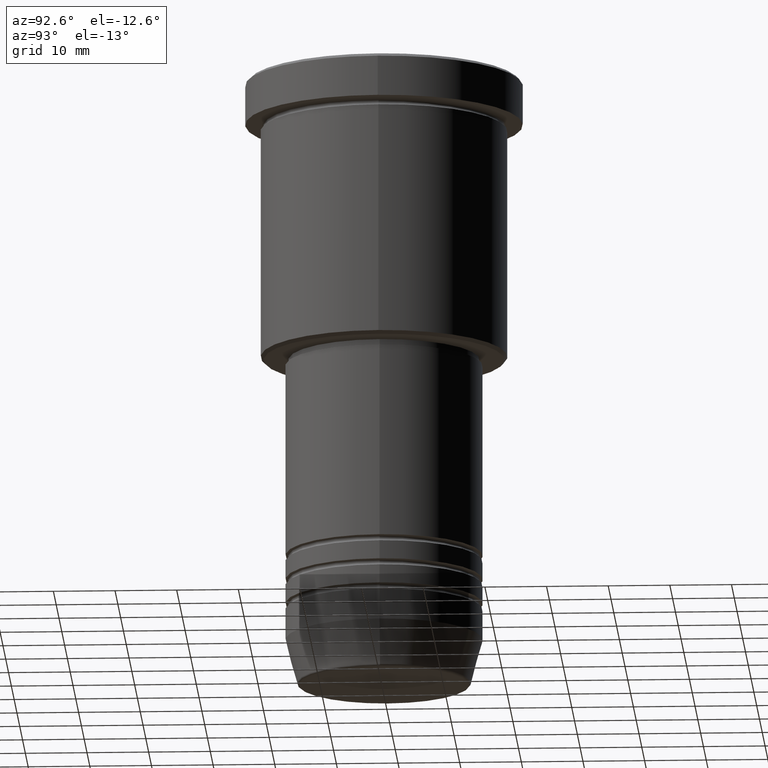
[diagram: clean part render]
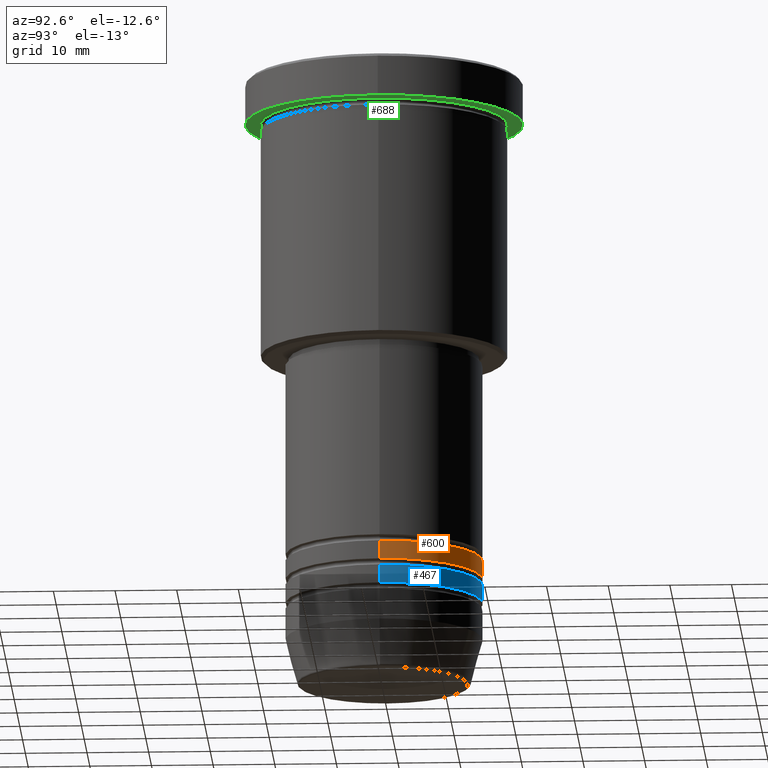
[diagram: same view with three faces highlighted in distinct colors, each labeled with its STEP entity id]
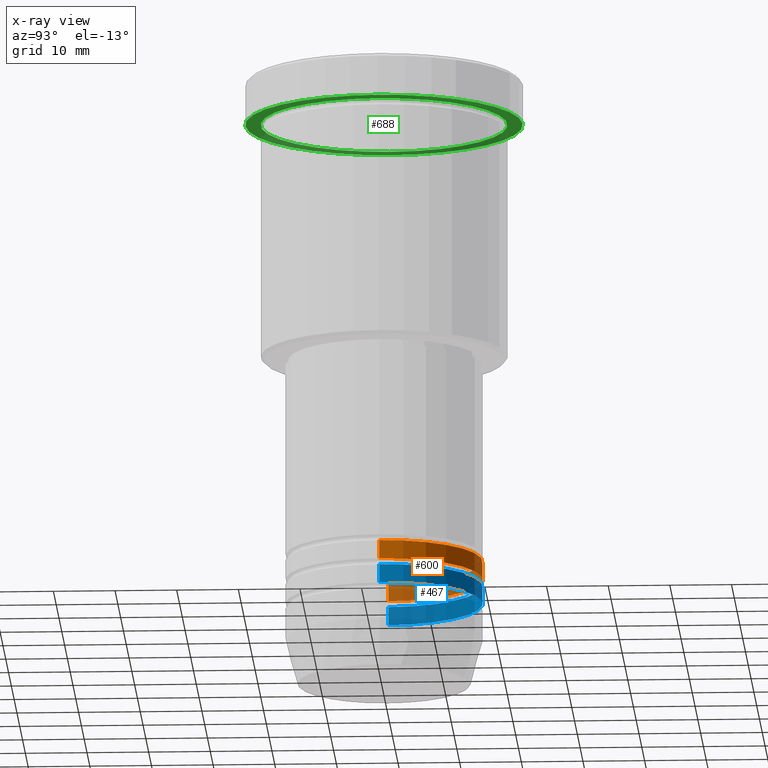
[diagram: x-ray of the same camera — body ghosted, the three highlighted faces saturated]
A machine part, auxiliary view with three faces highlighted in distinct colors.
The next image is the same camera in x-ray (body ghosted, the three faces saturated) — at least one of them is partly hidden behind the body in this view.
Their STEP definitions:

[orange] entity #600 — the highlighted cylindrical surface (partial cylindrical patch) has radius 16 mm, axis along (-0, -0, 1).
#17 = AXIS2_PLACEMENT_3D ( 'NONE', #780, #843, #623 ) ;
#59 = CARTESIAN_POINT ( 'NONE',  ( -16.00000000000000355, 1.959434878635765526E-15, -82.49999999999998579 ) ) ;
#79 = EDGE_CURVE ( 'NONE', #435, #656, #691, .T. ) ;
#93 = AXIS2_PLACEMENT_3D ( 'NONE', #449, #500, #190 ) ;
#122 = CARTESIAN_POINT ( 'NONE',  ( 16.00000000000000000, 0.000000000000000000, 0.000000000000000000 ) ) ;
#160 = EDGE_CURVE ( 'NONE', #1114, #435, #494, .T. ) ;
#167 = CARTESIAN_POINT ( 'NONE',  ( 0.000000000000000000, 0.000000000000000000, -82.49999999999998579 ) ) ;
#190 = DIRECTION ( 'NONE',  ( 1.000000000000000000, 0.000000000000000000, 0.000000000000000000 ) ) ;
#238 = DIRECTION ( 'NONE',  ( -0.000000000000000000, -0.000000000000000000, 1.000000000000000000 ) ) ;
#265 = ORIENTED_EDGE ( 'NONE', *, *, #160, .T. ) ;
#312 = AXIS2_PLACEMENT_3D ( 'NONE', #167, #529, #882 ) ;
#402 = FACE_OUTER_BOUND ( 'NONE', #716, .T. ) ;
#435 = VERTEX_POINT ( 'NONE', #59 ) ;
#441 = CARTESIAN_POINT ( 'NONE',  ( -16.00000000000000000, 1.959434878635765131E-15, 0.000000000000000000 ) ) ;
#449 = CARTESIAN_POINT ( 'NONE',  ( 0.000000000000000000, 0.000000000000000000, 0.000000000000000000 ) ) ;
#494 = CIRCLE ( 'NONE', #312, 16.00000000000000355 ) ;
#500 = DIRECTION ( 'NONE',  ( -0.000000000000000000, -0.000000000000000000, 1.000000000000000000 ) ) ;
#529 = DIRECTION ( 'NONE',  ( -0.000000000000000000, -0.000000000000000000, 1.000000000000000000 ) ) ;
#538 = CIRCLE ( 'NONE', #17, 16.00000000000000000 ) ;
#576 = DIRECTION ( 'NONE',  ( -0.000000000000000000, -0.000000000000000000, 1.000000000000000000 ) ) ;
#600 = ADVANCED_FACE ( 'NONE', ( #402 ), #774, .T. ) ;
#623 = DIRECTION ( 'NONE',  ( 1.000000000000000000, 0.000000000000000000, 0.000000000000000000 ) ) ;
#636 = VERTEX_POINT ( 'NONE', #1113 ) ;
#649 = CARTESIAN_POINT ( 'NONE',  ( -16.00000000000000000, 1.959434878635765131E-15, -79.49999999999998579 ) ) ;
#656 = VERTEX_POINT ( 'NONE', #649 ) ;
#675 = EDGE_CURVE ( 'NONE', #1114, #636, #1182, .T. ) ;
#689 = ORIENTED_EDGE ( 'NONE', *, *, #874, .F. ) ;
#691 = LINE ( 'NONE', #441, #1084 ) ;
#716 = EDGE_LOOP ( 'NONE', ( #265, #950, #689, #956 ) ) ;
#723 = VECTOR ( 'NONE', #576, 1000.000000000000000 ) ;
#733 = CARTESIAN_POINT ( 'NONE',  ( 16.00000000000000355, 0.000000000000000000, -82.49999999999998579 ) ) ;
#774 = CYLINDRICAL_SURFACE ( 'NONE', #93, 16.00000000000000000 ) ;
#780 = CARTESIAN_POINT ( 'NONE',  ( 0.000000000000000000, 0.000000000000000000, -79.49999999999998579 ) ) ;
#843 = DIRECTION ( 'NONE',  ( -0.000000000000000000, -0.000000000000000000, 1.000000000000000000 ) ) ;
#874 = EDGE_CURVE ( 'NONE', #636, #656, #538, .T. ) ;
#882 = DIRECTION ( 'NONE',  ( 1.000000000000000000, 0.000000000000000000, 0.000000000000000000 ) ) ;
#950 = ORIENTED_EDGE ( 'NONE', *, *, #79, .T. ) ;
#956 = ORIENTED_EDGE ( 'NONE', *, *, #675, .F. ) ;
#1084 = VECTOR ( 'NONE', #238, 1000.000000000000000 ) ;
#1113 = CARTESIAN_POINT ( 'NONE',  ( 16.00000000000000000, 0.000000000000000000, -79.49999999999998579 ) ) ;
#1114 = VERTEX_POINT ( 'NONE', #733 ) ;
#1182 = LINE ( 'NONE', #122, #723 ) ;

[blue] entity #467 — the highlighted cylindrical surface (partial cylindrical patch) has radius 16 mm, axis along (-0, -0, 1).
#12 = DIRECTION ( 'NONE',  ( 1.000000000000000000, 0.000000000000000000, 0.000000000000000000 ) ) ;
#30 = VECTOR ( 'NONE', #871, 1000.000000000000000 ) ;
#47 = ORIENTED_EDGE ( 'NONE', *, *, #258, .F. ) ;
#54 = AXIS2_PLACEMENT_3D ( 'NONE', #281, #744, #197 ) ;
#89 = DIRECTION ( 'NONE',  ( 1.000000000000000000, 0.000000000000000000, 0.000000000000000000 ) ) ;
#187 = DIRECTION ( 'NONE',  ( -0.000000000000000000, -0.000000000000000000, 1.000000000000000000 ) ) ;
#194 = EDGE_CURVE ( 'NONE', #279, #944, #619, .T. ) ;
#197 = DIRECTION ( 'NONE',  ( 1.000000000000000000, 0.000000000000000000, 0.000000000000000000 ) ) ;
#207 = ORIENTED_EDGE ( 'NONE', *, *, #194, .F. ) ;
#222 = CARTESIAN_POINT ( 'NONE',  ( 16.00000000000000000, 0.000000000000000000, -86.49999999999998579 ) ) ;
#231 = CARTESIAN_POINT ( 'NONE',  ( -16.00000000000000000, 1.959434878635765131E-15, 0.000000000000000000 ) ) ;
#258 = EDGE_CURVE ( 'NONE', #944, #1172, #699, .T. ) ;
#279 = VERTEX_POINT ( 'NONE', #222 ) ;
#281 = CARTESIAN_POINT ( 'NONE',  ( 0.000000000000000000, 0.000000000000000000, 0.000000000000000000 ) ) ;
#380 = EDGE_CURVE ( 'NONE', #845, #1172, #948, .T. ) ;
#414 = VECTOR ( 'NONE', #187, 1000.000000000000000 ) ;
#467 = ADVANCED_FACE ( 'NONE', ( #736 ), #828, .T. ) ;
#474 = AXIS2_PLACEMENT_3D ( 'NONE', #657, #488, #12 ) ;
#488 = DIRECTION ( 'NONE',  ( -0.000000000000000000, -0.000000000000000000, 1.000000000000000000 ) ) ;
#522 = CARTESIAN_POINT ( 'NONE',  ( 16.00000000000000000, 0.000000000000000000, -83.49999999999998579 ) ) ;
#544 = ORIENTED_EDGE ( 'NONE', *, *, #1095, .T. ) ;
#619 = LINE ( 'NONE', #880, #414 ) ;
#657 = CARTESIAN_POINT ( 'NONE',  ( 0.000000000000000000, 0.000000000000000000, -83.49999999999998579 ) ) ;
#681 = CARTESIAN_POINT ( 'NONE',  ( -16.00000000000000000, 1.959434878635765131E-15, -86.49999999999998579 ) ) ;
#699 = CIRCLE ( 'NONE', #474, 16.00000000000000000 ) ;
#736 = FACE_OUTER_BOUND ( 'NONE', #940, .T. ) ;
#744 = DIRECTION ( 'NONE',  ( -0.000000000000000000, -0.000000000000000000, 1.000000000000000000 ) ) ;
#782 = ORIENTED_EDGE ( 'NONE', *, *, #380, .T. ) ;
#816 = CIRCLE ( 'NONE', #928, 16.00000000000000000 ) ;
#828 = CYLINDRICAL_SURFACE ( 'NONE', #54, 16.00000000000000000 ) ;
#845 = VERTEX_POINT ( 'NONE', #681 ) ;
#871 = DIRECTION ( 'NONE',  ( -0.000000000000000000, -0.000000000000000000, 1.000000000000000000 ) ) ;
#880 = CARTESIAN_POINT ( 'NONE',  ( 16.00000000000000000, 0.000000000000000000, 0.000000000000000000 ) ) ;
#904 = DIRECTION ( 'NONE',  ( -0.000000000000000000, -0.000000000000000000, 1.000000000000000000 ) ) ;
#928 = AXIS2_PLACEMENT_3D ( 'NONE', #1178, #904, #89 ) ;
#940 = EDGE_LOOP ( 'NONE', ( #544, #782, #47, #207 ) ) ;
#944 = VERTEX_POINT ( 'NONE', #522 ) ;
#948 = LINE ( 'NONE', #231, #30 ) ;
#1095 = EDGE_CURVE ( 'NONE', #279, #845, #816, .T. ) ;
#1119 = CARTESIAN_POINT ( 'NONE',  ( -16.00000000000000000, 1.959434878635765131E-15, -83.49999999999998579 ) ) ;
#1172 = VERTEX_POINT ( 'NONE', #1119 ) ;
#1178 = CARTESIAN_POINT ( 'NONE',  ( 0.000000000000000000, 0.000000000000000000, -86.49999999999998579 ) ) ;

[green] entity #688 — the highlighted planar face has unit normal (0, 0, -1).
#14 = CIRCLE ( 'NONE', #922, 20.00000000000000000 ) ;
#15 = AXIS2_PLACEMENT_3D ( 'NONE', #1004, #565, #466 ) ;
#31 = DIRECTION ( 'NONE',  ( 1.000000000000000000, 0.000000000000000000, 0.000000000000000000 ) ) ;
#146 = DIRECTION ( 'NONE',  ( -1.000000000000000000, 0.000000000000000000, 0.000000000000000000 ) ) ;
#196 = FACE_OUTER_BOUND ( 'NONE', #343, .T. ) ;
#210 = CARTESIAN_POINT ( 'NONE',  ( 20.00000000000000000, 2.449293598294706513E-15, -6.999999999999995559 ) ) ;
#226 = CARTESIAN_POINT ( 'NONE',  ( 0.000000000000000000, 0.000000000000000000, -6.999999999999995559 ) ) ;
#266 = DIRECTION ( 'NONE',  ( -1.000000000000000000, 0.000000000000000000, 0.000000000000000000 ) ) ;
#300 = DIRECTION ( 'NONE',  ( -0.000000000000000000, -0.000000000000000000, 1.000000000000000000 ) ) ;
#343 = EDGE_LOOP ( 'NONE', ( #808, #648 ) ) ;
#354 = DIRECTION ( 'NONE',  ( -0.000000000000000000, -0.000000000000000000, 1.000000000000000000 ) ) ;
#395 = AXIS2_PLACEMENT_3D ( 'NONE', #416, #608, #146 ) ;
#416 = CARTESIAN_POINT ( 'NONE',  ( 0.000000000000000000, 0.000000000000000000, -6.999999999999995559 ) ) ;
#423 = EDGE_CURVE ( 'NONE', #1163, #523, #14, .T. ) ;
#466 = DIRECTION ( 'NONE',  ( -1.000000000000000000, 0.000000000000000000, -0.000000000000000000 ) ) ;
#523 = VERTEX_POINT ( 'NONE', #210 ) ;
#565 = DIRECTION ( 'NONE',  ( 0.000000000000000000, 0.000000000000000000, -1.000000000000000000 ) ) ;
#581 = AXIS2_PLACEMENT_3D ( 'NONE', #226, #937, #1137 ) ;
#605 = VERTEX_POINT ( 'NONE', #908 ) ;
#608 = DIRECTION ( 'NONE',  ( -0.000000000000000000, -0.000000000000000000, 1.000000000000000000 ) ) ;
#635 = CIRCLE ( 'NONE', #776, 22.50000000000000000 ) ;
#645 = ORIENTED_EDGE ( 'NONE', *, *, #423, .T. ) ;
#648 = ORIENTED_EDGE ( 'NONE', *, *, #756, .F. ) ;
#679 = CARTESIAN_POINT ( 'NONE',  ( -22.50000000000000000, 2.755455298081544778E-15, -6.999999999999995559 ) ) ;
#688 = ADVANCED_FACE ( 'NONE', ( #735, #196 ), #1100, .T. ) ;
#735 = FACE_BOUND ( 'NONE', #1048, .T. ) ;
#756 = EDGE_CURVE ( 'NONE', #1170, #605, #849, .T. ) ;
#776 = AXIS2_PLACEMENT_3D ( 'NONE', #1054, #300, #31 ) ;
#790 = EDGE_CURVE ( 'NONE', #605, #1170, #635, .T. ) ;
#800 = EDGE_CURVE ( 'NONE', #523, #1163, #945, .T. ) ;
#808 = ORIENTED_EDGE ( 'NONE', *, *, #790, .F. ) ;
#849 = CIRCLE ( 'NONE', #581, 22.50000000000000000 ) ;
#908 = CARTESIAN_POINT ( 'NONE',  ( 22.50000000000000000, 0.000000000000000000, -6.999999999999995559 ) ) ;
#922 = AXIS2_PLACEMENT_3D ( 'NONE', #1176, #354, #266 ) ;
#937 = DIRECTION ( 'NONE',  ( -0.000000000000000000, -0.000000000000000000, 1.000000000000000000 ) ) ;
#945 = CIRCLE ( 'NONE', #395, 20.00000000000000000 ) ;
#1004 = CARTESIAN_POINT ( 'NONE',  ( 0.000000000000000000, 22.50000000000000000, -6.999999999999995559 ) ) ;
#1048 = EDGE_LOOP ( 'NONE', ( #645, #1082 ) ) ;
#1054 = CARTESIAN_POINT ( 'NONE',  ( 0.000000000000000000, 0.000000000000000000, -6.999999999999995559 ) ) ;
#1082 = ORIENTED_EDGE ( 'NONE', *, *, #800, .T. ) ;
#1100 = PLANE ( 'NONE',  #15 ) ;
#1116 = CARTESIAN_POINT ( 'NONE',  ( -20.00000000000000000, 0.000000000000000000, -6.999999999999995559 ) ) ;
#1137 = DIRECTION ( 'NONE',  ( 1.000000000000000000, 0.000000000000000000, 0.000000000000000000 ) ) ;
#1163 = VERTEX_POINT ( 'NONE', #1116 ) ;
#1170 = VERTEX_POINT ( 'NONE', #679 ) ;
#1176 = CARTESIAN_POINT ( 'NONE',  ( 0.000000000000000000, 0.000000000000000000, -6.999999999999995559 ) ) ;